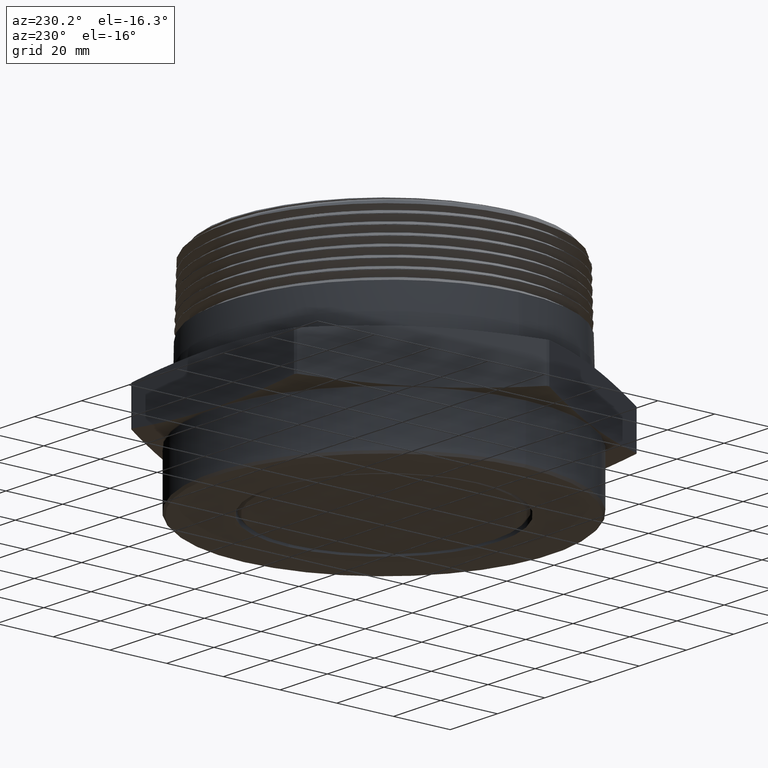
[diagram: clean part render]
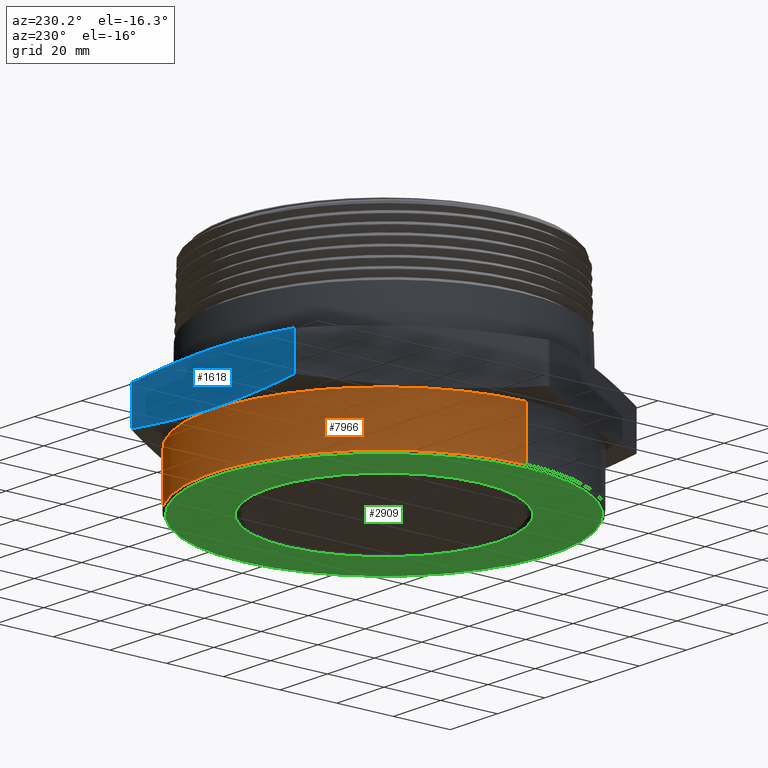
[diagram: same view with three faces highlighted in distinct colors, each labeled with its STEP entity id]
A machine part, auxiliary view with three faces highlighted in distinct colors.
Their STEP definitions:

[orange] entity #7966 — the highlighted cylindrical surface (partial cylindrical patch) has radius 60.071 mm, axis along (0, 0, 1).
#1689 = CARTESIAN_POINT ( 'NONE',  ( 2.365000000000000200, 0.0000000000000000000, -0.7100000000000000800 ) ) ;
#1690 = CARTESIAN_POINT ( 'NONE',  ( 2.365000000000000200, 0.0000000000000000000, -0.008097840331950958300 ) ) ;
#1691 = CARTESIAN_POINT ( 'NONE',  ( -2.365000000000000200, 2.896289679983490900E-016, -0.7100000000000000800 ) ) ;
#1801 = CARTESIAN_POINT ( 'NONE',  ( -2.365000000000000200, 2.896289679983490900E-016, -0.008097840331950668600 ) ) ;
#2053 = ORIENTED_EDGE ( 'NONE', *, *, #8293, .T. ) ;
#2054 = ORIENTED_EDGE ( 'NONE', *, *, #8283, .T. ) ;
#2056 = ORIENTED_EDGE ( 'NONE', *, *, #8294, .T. ) ;
#2058 = ORIENTED_EDGE ( 'NONE', *, *, #8295, .F. ) ;
#2062 = VERTEX_POINT ( 'NONE', #1690 ) ;
#2064 = VERTEX_POINT ( 'NONE', #1691 ) ;
#2065 = VERTEX_POINT ( 'NONE', #1689 ) ;
#2119 = EDGE_LOOP ( 'NONE', ( #2054, #2053, #2056, #2058 ) ) ;
#2679 = CIRCLE ( 'NONE', #2778, 2.365000000000000200 ) ;
#2695 = LINE ( 'NONE', #3767, #2699 ) ;
#2698 = CIRCLE ( 'NONE', #2787, 2.365000000000000200 ) ;
#2699 = VECTOR ( 'NONE', #3762, 39.37007874015748100 ) ;
#2700 = LINE ( 'NONE', #3758, #2702 ) ;
#2702 = VECTOR ( 'NONE', #3766, 39.37007874015748100 ) ;
#2732 = AXIS2_PLACEMENT_3D ( 'NONE', #5877, #5878, #5875 ) ;
#2778 = AXIS2_PLACEMENT_3D ( 'NONE', #3740, #3741, #3742 ) ;
#2787 = AXIS2_PLACEMENT_3D ( 'NONE', #3772, #3773, #3774 ) ;
#2982 = FACE_OUTER_BOUND ( 'NONE', #2119, .T. ) ;
#3740 = CARTESIAN_POINT ( 'NONE',  ( 0.0000000000000000000, 0.0000000000000000000, -0.7100000000000000800 ) ) ;
#3741 = DIRECTION ( 'NONE',  ( 0.0000000000000000000, 0.0000000000000000000, 1.000000000000000000 ) ) ;
#3742 = DIRECTION ( 'NONE',  ( -1.000000000000000000, 0.0000000000000000000, 0.0000000000000000000 ) ) ;
#3758 = CARTESIAN_POINT ( 'NONE',  ( 2.365000000000000200, 0.0000000000000000000, -0.7399999999999999900 ) ) ;
#3762 = DIRECTION ( 'NONE',  ( -0.0000000000000000000, -0.0000000000000000000, 1.000000000000000000 ) ) ;
#3766 = DIRECTION ( 'NONE',  ( -0.0000000000000000000, -0.0000000000000000000, 1.000000000000000000 ) ) ;
#3767 = CARTESIAN_POINT ( 'NONE',  ( -2.365000000000000200, 2.896289679983490900E-016, -0.7399999999999999900 ) ) ;
#3772 = CARTESIAN_POINT ( 'NONE',  ( 0.0000000000000000000, 0.0000000000000000000, -0.008097840331950812600 ) ) ;
#3773 = DIRECTION ( 'NONE',  ( -6.123233995736756200E-017, -0.0000000000000000000, -1.000000000000000000 ) ) ;
#3774 = DIRECTION ( 'NONE',  ( -1.000000000000000000, 0.0000000000000000000, 6.136550725725749800E-017 ) ) ;
#4475 = CYLINDRICAL_SURFACE ( 'NONE', #2732, 2.365000000000000200 ) ;
#5817 = VERTEX_POINT ( 'NONE', #1801 ) ;
#5875 = DIRECTION ( 'NONE',  ( 1.000000000000000000, 0.0000000000000000000, 0.0000000000000000000 ) ) ;
#5877 = CARTESIAN_POINT ( 'NONE',  ( 0.0000000000000000000, 0.0000000000000000000, -0.7399999999999999900 ) ) ;
#5878 = DIRECTION ( 'NONE',  ( -0.0000000000000000000, -0.0000000000000000000, 1.000000000000000000 ) ) ;
#7966 = ADVANCED_FACE ( 'NONE', ( #2982 ), #4475, .T. ) ;
#8283 = EDGE_CURVE ( 'NONE', #2065, #2064, #2679, .T. ) ;
#8293 = EDGE_CURVE ( 'NONE', #2064, #5817, #2695, .T. ) ;
#8294 = EDGE_CURVE ( 'NONE', #5817, #2062, #2698, .T. ) ;
#8295 = EDGE_CURVE ( 'NONE', #2065, #2062, #2700, .T. ) ;

[blue] entity #1618 — the highlighted planar face has unit normal (0, -1, 0).
#1618 = ADVANCED_FACE ( 'NONE', ( #4451 ), #1631, .F. ) ;
#1631 = PLANE ( 'NONE',  #8244 ) ;
#1632 = CARTESIAN_POINT ( 'NONE',  ( 1.371206889325361100, 2.375000000000000000, 0.6700000000000000400 ) ) ;
#1633 = DIRECTION ( 'NONE',  ( 0.0000000000000000000, -1.000000000000000000, 0.0000000000000000000 ) ) ;
#1634 = DIRECTION ( 'NONE',  ( 0.0000000000000000000, -0.0000000000000000000, -1.000000000000000000 ) ) ;
#1688 = CARTESIAN_POINT ( 'NONE',  ( -1.351095872897374100, 2.375000000000000000, 0.07809620950018519900 ) ) ;
#1709 = CARTESIAN_POINT ( 'NONE',  ( 1.351095872897374100, 2.375000000000000000, 0.07809620950018537900 ) ) ;
#1746 = CARTESIAN_POINT ( 'NONE',  ( -1.351095872897374100, 2.375000000000000000, 0.5919037904998144500 ) ) ;
#1761 = CARTESIAN_POINT ( 'NONE',  ( 1.351095872897374100, 2.375000000000000000, 0.5919037904998142300 ) ) ;
#2026 = ORIENTED_EDGE ( 'NONE', *, *, #8202, .T. ) ;
#2027 = ORIENTED_EDGE ( 'NONE', *, *, #8311, .T. ) ;
#2028 = ORIENTED_EDGE ( 'NONE', *, *, #8205, .T. ) ;
#2029 = ORIENTED_EDGE ( 'NONE', *, *, #8301, .T. ) ;
#2060 = VERTEX_POINT ( 'NONE', #1688 ) ;
#2084 = VERTEX_POINT ( 'NONE', #1709 ) ;
#2109 = EDGE_LOOP ( 'NONE', ( #2029, #2028, #2027, #2026 ) ) ;
#2626 = LINE ( 'NONE', #6511, #2628 ) ;
#2628 = VECTOR ( 'NONE', #6512, 39.37007874015748100 ) ;
#2631 = LINE ( 'NONE', #6526, #2634 ) ;
#2634 = VECTOR ( 'NONE', #6527, 39.37007874015748100 ) ;
#2857 = VERTEX_POINT ( 'NONE', #1746 ) ;
#2876 = VERTEX_POINT ( 'NONE', #1761 ) ;
#3791 = CARTESIAN_POINT ( 'NONE',  ( 1.351095872897374100, 2.375000000000000000, 0.07809620950018537900 ) ) ;
#3792 = CARTESIAN_POINT ( 'NONE',  ( 1.126396036090904900, 2.375000000000000000, 0.05447963124755261800 ) ) ;
#3797 = CARTESIAN_POINT ( 'NONE',  ( 0.9015963571545615500, 2.375000000000000400, 0.03531557287650222100 ) ) ;
#3798 = CARTESIAN_POINT ( 'NONE',  ( 0.4517250701887819400, 2.375000000000000000, 0.009114297728386172900 ) ) ;
#3799 = CARTESIAN_POINT ( 'NONE',  ( 0.2266517297341724100, 2.375000000000000400, 0.002154339494769536900 ) ) ;
#3800 = CARTESIAN_POINT ( 'NONE',  ( -0.2238058013334090800, 2.375000000000000000, 0.002096972955577559700 ) ) ;
#3801 = CARTESIAN_POINT ( 'NONE',  ( -0.4491900416486205900, 2.375000000000000400, 0.009001781151312053500 ) ) ;
#3802 = CARTESIAN_POINT ( 'NONE',  ( -0.9002363555214364400, 2.375000000000000900, 0.03520153822878752800 ) ) ;
#3803 = CARTESIAN_POINT ( 'NONE',  ( -1.126096373971885700, 2.375000000000000400, 0.05444813592479819800 ) ) ;
#3804 = CARTESIAN_POINT ( 'NONE',  ( -1.351095872897374100, 2.375000000000000000, 0.07809620950018519900 ) ) ;
#3839 = CARTESIAN_POINT ( 'NONE',  ( -1.126096373971886100, 2.375000000000000400, 0.6155518640752014600 ) ) ;
#3840 = CARTESIAN_POINT ( 'NONE',  ( -1.351095872897374100, 2.375000000000000000, 0.5919037904998144500 ) ) ;
#3844 = CARTESIAN_POINT ( 'NONE',  ( -0.9002363555214364400, 2.375000000000000400, 0.6347984617712119100 ) ) ;
#3845 = CARTESIAN_POINT ( 'NONE',  ( -0.4491900416486208600, 2.375000000000000000, 0.6609982188486873700 ) ) ;
#3846 = CARTESIAN_POINT ( 'NONE',  ( -0.2238058013334097400, 2.375000000000000000, 0.6679030270444216200 ) ) ;
#3847 = CARTESIAN_POINT ( 'NONE',  ( 0.2266517297341715500, 2.374999999999999600, 0.6678456605052295300 ) ) ;
#3848 = CARTESIAN_POINT ( 'NONE',  ( 0.4517250701887820000, 2.375000000000000000, 0.6608857022716130300 ) ) ;
#3849 = CARTESIAN_POINT ( 'NONE',  ( 0.9015963571545614300, 2.375000000000000400, 0.6346844271234968200 ) ) ;
#3850 = CARTESIAN_POINT ( 'NONE',  ( 1.126396036090904200, 2.374999999999999600, 0.6155203687524464200 ) ) ;
#3851 = CARTESIAN_POINT ( 'NONE',  ( 1.351095872897374100, 2.375000000000000000, 0.5919037904998142300 ) ) ;
#4451 = FACE_OUTER_BOUND ( 'NONE', #2109, .T. ) ;
#6511 = CARTESIAN_POINT ( 'NONE',  ( 1.351095872897374100, 2.375000000000000000, -1.654615236084965500E-016 ) ) ;
#6512 = DIRECTION ( 'NONE',  ( -1.224646799147351200E-016, -0.0000000000000000000, -1.000000000000000000 ) ) ;
#6526 = CARTESIAN_POINT ( 'NONE',  ( -1.351095872897374100, 2.375000000000000000, 1.654615236084965500E-016 ) ) ;
#6527 = DIRECTION ( 'NONE',  ( 1.224646799147351200E-016, 0.0000000000000000000, 1.000000000000000000 ) ) ;
#8202 = EDGE_CURVE ( 'NONE', #2876, #2084, #2626, .T. ) ;
#8205 = EDGE_CURVE ( 'NONE', #2060, #2857, #2631, .T. ) ;
#8244 = AXIS2_PLACEMENT_3D ( 'NONE', #1632, #1633, #1634 ) ;
#8301 = EDGE_CURVE ( 'NONE', #2084, #2060, #8417, .T. ) ;
#8311 = EDGE_CURVE ( 'NONE', #2857, #2876, #8414, .T. ) ;
#8414 = B_SPLINE_CURVE_WITH_KNOTS ( 'NONE', 3,
 ( #3840, #3839, #3844, #3845, #3846, #3847, #3848, #3849, #3850, #3851 ),
 .UNSPECIFIED., .F., .F.,
 ( 4, 2, 2, 2, 4 ),
 ( 0.05832531411798175900, 0.07555280815727798100, 0.09278030219657419600, 0.1100077962358704100, 0.1272352902751666100 ),
 .UNSPECIFIED. ) ;
#8417 = B_SPLINE_CURVE_WITH_KNOTS ( 'NONE', 3,
 ( #3791, #3792, #3797, #3798, #3799, #3800, #3801, #3802, #3803, #3804 ),
 .UNSPECIFIED., .F., .F.,
 ( 4, 2, 2, 2, 4 ),
 ( 0.1321518283053317000, 0.1493624693089035100, 0.1665731103124752900, 0.1837837513160471000, 0.2009943923196189100 ),
 .UNSPECIFIED. ) ;

[green] entity #2909 — the highlighted planar face has unit normal (0, 0, -1).
#1681 = CARTESIAN_POINT ( 'NONE',  ( -1.589000000000000200, 0.0000000000000000000, -0.7399999999999999900 ) ) ;
#1693 = CARTESIAN_POINT ( 'NONE',  ( 1.589000000000000200, 1.945963763845144500E-016, -0.7399999999999999900 ) ) ;
#1694 = CARTESIAN_POINT ( 'NONE',  ( 2.335000000000000900, 0.0000000000000000000, -0.7399999999999999900 ) ) ;
#1708 = CARTESIAN_POINT ( 'NONE',  ( -2.335000000000000900, 2.877919977996280800E-016, -0.7399999999999999900 ) ) ;
#1766 = PLANE ( 'NONE',  #8269 ) ;
#1768 = CARTESIAN_POINT ( 'NONE',  ( 0.0000000000000000000, 0.0000000000000000000, -0.7399999999999999900 ) ) ;
#1769 = DIRECTION ( 'NONE',  ( 0.0000000000000000000, 0.0000000000000000000, -1.000000000000000000 ) ) ;
#1770 = DIRECTION ( 'NONE',  ( -1.000000000000000000, 0.0000000000000000000, -0.0000000000000000000 ) ) ;
#2002 = ORIENTED_EDGE ( 'NONE', *, *, #8281, .T. ) ;
#2003 = ORIENTED_EDGE ( 'NONE', *, *, #8216, .T. ) ;
#2004 = ORIENTED_EDGE ( 'NONE', *, *, #8279, .F. ) ;
#2005 = ORIENTED_EDGE ( 'NONE', *, *, #8215, .F. ) ;
#2067 = VERTEX_POINT ( 'NONE', #1681 ) ;
#2068 = VERTEX_POINT ( 'NONE', #1693 ) ;
#2069 = VERTEX_POINT ( 'NONE', #1694 ) ;
#2083 = VERTEX_POINT ( 'NONE', #1708 ) ;
#2099 = EDGE_LOOP ( 'NONE', ( #2005, #2004 ) ) ;
#2106 = EDGE_LOOP ( 'NONE', ( #2003, #2002 ) ) ;
#2633 = CIRCLE ( 'NONE', #2761, 2.335000000000000900 ) ;
#2636 = CIRCLE ( 'NONE', #2760, 1.589000000000000200 ) ;
#2678 = CIRCLE ( 'NONE', #2776, 1.589000000000000200 ) ;
#2682 = CIRCLE ( 'NONE', #2777, 2.335000000000000900 ) ;
#2760 = AXIS2_PLACEMENT_3D ( 'NONE', #6590, #6591, #6592 ) ;
#2761 = AXIS2_PLACEMENT_3D ( 'NONE', #6593, #6594, #6595 ) ;
#2776 = AXIS2_PLACEMENT_3D ( 'NONE', #3732, #3733, #3734 ) ;
#2777 = AXIS2_PLACEMENT_3D ( 'NONE', #3735, #3736, #3737 ) ;
#2909 = ADVANCED_FACE ( 'NONE', ( #4472, #2913 ), #1766, .T. ) ;
#2913 = FACE_OUTER_BOUND ( 'NONE', #2106, .T. ) ;
#3732 = CARTESIAN_POINT ( 'NONE',  ( 2.449293598294803500E-018, 0.0000000000000000000, -0.7399999999999999900 ) ) ;
#3733 = DIRECTION ( 'NONE',  ( 2.070959839171675800E-018, -0.0000000000000000000, -1.000000000000000000 ) ) ;
#3734 = DIRECTION ( 'NONE',  ( -1.000000000000000000, 0.0000000000000000000, 0.0000000000000000000 ) ) ;
#3735 = CARTESIAN_POINT ( 'NONE',  ( 0.0000000000000000000, 0.0000000000000000000, -0.7399999999999999900 ) ) ;
#3736 = DIRECTION ( 'NONE',  ( 0.0000000000000000000, 0.0000000000000000000, -1.000000000000000000 ) ) ;
#3737 = DIRECTION ( 'NONE',  ( -1.000000000000000000, 0.0000000000000000000, 0.0000000000000000000 ) ) ;
#4472 = FACE_BOUND ( 'NONE', #2099, .T. ) ;
#6590 = CARTESIAN_POINT ( 'NONE',  ( 2.449293598294803500E-018, 0.0000000000000000000, -0.7399999999999999900 ) ) ;
#6591 = DIRECTION ( 'NONE',  ( 2.070959839171675800E-018, -0.0000000000000000000, -1.000000000000000000 ) ) ;
#6592 = DIRECTION ( 'NONE',  ( -1.000000000000000000, 0.0000000000000000000, 0.0000000000000000000 ) ) ;
#6593 = CARTESIAN_POINT ( 'NONE',  ( 0.0000000000000000000, 0.0000000000000000000, -0.7399999999999999900 ) ) ;
#6594 = DIRECTION ( 'NONE',  ( 0.0000000000000000000, 0.0000000000000000000, -1.000000000000000000 ) ) ;
#6595 = DIRECTION ( 'NONE',  ( -1.000000000000000000, 0.0000000000000000000, 0.0000000000000000000 ) ) ;
#8215 = EDGE_CURVE ( 'NONE', #2067, #2068, #2636, .T. ) ;
#8216 = EDGE_CURVE ( 'NONE', #2069, #2083, #2633, .T. ) ;
#8269 = AXIS2_PLACEMENT_3D ( 'NONE', #1768, #1769, #1770 ) ;
#8279 = EDGE_CURVE ( 'NONE', #2068, #2067, #2678, .T. ) ;
#8281 = EDGE_CURVE ( 'NONE', #2083, #2069, #2682, .T. ) ;